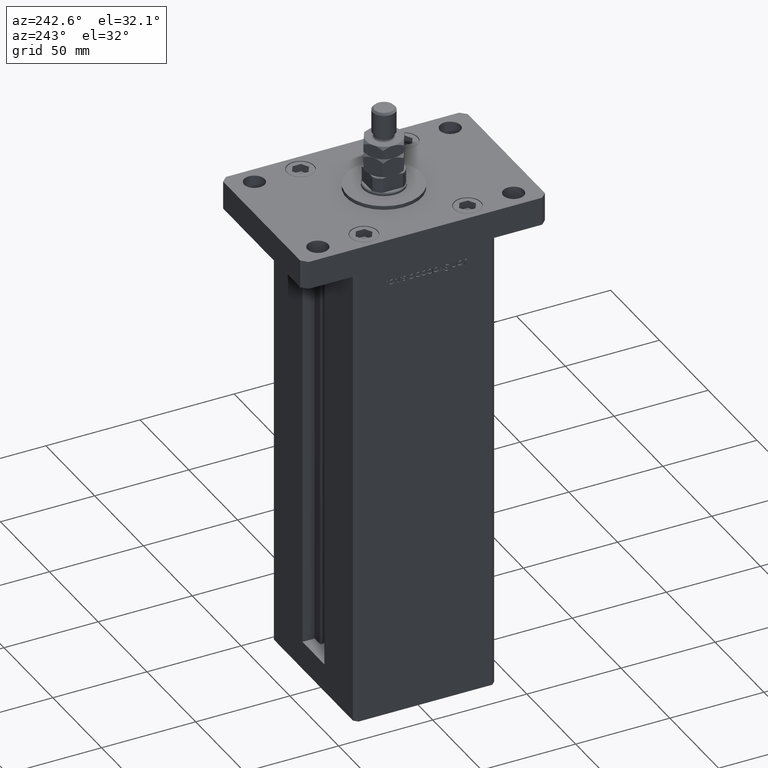
[diagram: clean part render]
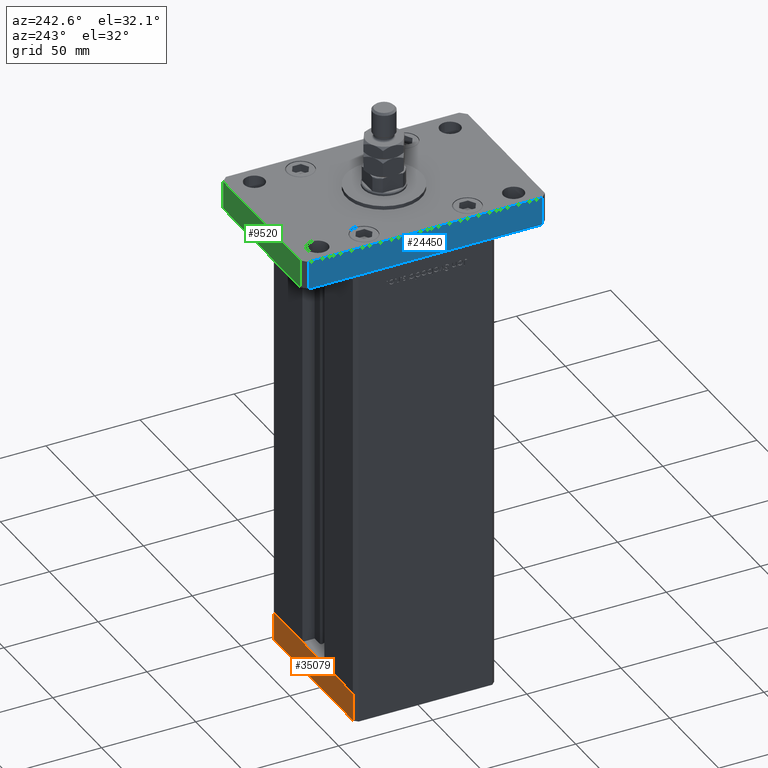
[diagram: same view with three faces highlighted in distinct colors, each labeled with its STEP entity id]
A machine part, auxiliary view with three faces highlighted in distinct colors.
Their STEP definitions:

[orange] entity #35079 — the highlighted planar face has unit normal (0, 1, 0).
#381 = CARTESIAN_POINT ( 'NONE',  ( 40.49999999999991473, 37.50000000000000711, 0.000000000000000000 ) ) ;
#815 = CARTESIAN_POINT ( 'NONE',  ( 40.49999999999991473, 37.50000000000000711, -15.00000000000000000 ) ) ;
#2016 = CARTESIAN_POINT ( 'NONE',  ( 40.49999999999991473, 37.50000000000000711, -15.00000000000000000 ) ) ;
#9674 = ORIENTED_EDGE ( 'NONE', *, *, #21441, .F. ) ;
#11696 = DIRECTION ( 'NONE',  ( 0.000000000000000000, 0.000000000000000000, 1.000000000000000000 ) ) ;
#12988 = EDGE_CURVE ( 'NONE', #54372, #23446, #21171, .T. ) ;
#13449 = VECTOR ( 'NONE', #38203, 1000.000000000000000 ) ;
#14392 = ORIENTED_EDGE ( 'NONE', *, *, #25641, .T. ) ;
#15710 = FACE_OUTER_BOUND ( 'NONE', #39530, .T. ) ;
#15831 = VECTOR ( 'NONE', #11696, 1000.000000000000000 ) ;
#21171 = LINE ( 'NONE', #55176, #15831 ) ;
#21215 = LINE ( 'NONE', #815, #13449 ) ;
#21441 = EDGE_CURVE ( 'NONE', #23446, #37216, #43516, .T. ) ;
#23446 = VERTEX_POINT ( 'NONE', #381 ) ;
#23709 = CARTESIAN_POINT ( 'NONE',  ( -40.50000000000000711, 37.49999999999997868, -15.00000000000000000 ) ) ;
#24340 = PLANE ( 'NONE',  #49362 ) ;
#25641 = EDGE_CURVE ( 'NONE', #54372, #32544, #21215, .T. ) ;
#27605 = LINE ( 'NONE', #23709, #32894 ) ;
#32544 = VERTEX_POINT ( 'NONE', #52908 ) ;
#32703 = DIRECTION ( 'NONE',  ( -3.426614273534436165E-16, 1.000000000000000000, 0.000000000000000000 ) ) ;
#32894 = VECTOR ( 'NONE', #40696, 1000.000000000000000 ) ;
#35079 = ADVANCED_FACE ( 'NONE', ( #15710 ), #24340, .T. ) ;
#37216 = VERTEX_POINT ( 'NONE', #48153 ) ;
#38203 = DIRECTION ( 'NONE',  ( -1.000000000000000000, -3.426614273534436165E-16, 0.000000000000000000 ) ) ;
#39530 = EDGE_LOOP ( 'NONE', ( #9674, #40669, #14392, #47368 ) ) ;
#39961 = EDGE_CURVE ( 'NONE', #32544, #37216, #27605, .T. ) ;
#40669 = ORIENTED_EDGE ( 'NONE', *, *, #12988, .F. ) ;
#40696 = DIRECTION ( 'NONE',  ( 0.000000000000000000, 0.000000000000000000, 1.000000000000000000 ) ) ;
#43516 = LINE ( 'NONE', #47428, #46236 ) ;
#45239 = DIRECTION ( 'NONE',  ( -1.000000000000000000, -3.426614273534436165E-16, 0.000000000000000000 ) ) ;
#46236 = VECTOR ( 'NONE', #51628, 1000.000000000000000 ) ;
#47368 = ORIENTED_EDGE ( 'NONE', *, *, #39961, .T. ) ;
#47428 = CARTESIAN_POINT ( 'NONE',  ( 40.49999999999991473, 37.50000000000000711, 0.000000000000000000 ) ) ;
#48153 = CARTESIAN_POINT ( 'NONE',  ( -40.50000000000000711, 37.49999999999997868, 0.000000000000000000 ) ) ;
#49362 = AXIS2_PLACEMENT_3D ( 'NONE', #2016, #32703, #45239 ) ;
#51628 = DIRECTION ( 'NONE',  ( -1.000000000000000000, -3.426614273534436165E-16, 0.000000000000000000 ) ) ;
#52908 = CARTESIAN_POINT ( 'NONE',  ( -40.50000000000000711, 37.49999999999997868, -15.00000000000000000 ) ) ;
#53295 = CARTESIAN_POINT ( 'NONE',  ( 40.49999999999991473, 37.50000000000000711, -15.00000000000000000 ) ) ;
#54372 = VERTEX_POINT ( 'NONE', #53295 ) ;
#55176 = CARTESIAN_POINT ( 'NONE',  ( 40.49999999999991473, 37.50000000000000711, -15.00000000000000000 ) ) ;

[blue] entity #24450 — the highlighted planar face has unit normal (1, 0, 0).
#744 = VECTOR ( 'NONE', #53127, 1000.000000000000000 ) ;
#1622 = CARTESIAN_POINT ( 'NONE',  ( -42.50000000000002132, 62.00000000000000711, 15.00000000000000000 ) ) ;
#2604 = ORIENTED_EDGE ( 'NONE', *, *, #5972, .T. ) ;
#4056 = VECTOR ( 'NONE', #52701, 1000.000000000000000 ) ;
#5972 = EDGE_CURVE ( 'NONE', #33193, #26816, #49967, .T. ) ;
#6654 = LINE ( 'NONE', #15335, #4056 ) ;
#8318 = EDGE_CURVE ( 'NONE', #16983, #49823, #6654, .T. ) ;
#12017 = DIRECTION ( 'NONE',  ( 2.238352872228137677E-16, -1.000000000000000000, 0.000000000000000000 ) ) ;
#13845 = ORIENTED_EDGE ( 'NONE', *, *, #8318, .F. ) ;
#15335 = CARTESIAN_POINT ( 'NONE',  ( -42.50000000000002132, 62.00000000000000711, 15.00000000000000000 ) ) ;
#15590 = EDGE_CURVE ( 'NONE', #49823, #26816, #19952, .T. ) ;
#16983 = VERTEX_POINT ( 'NONE', #1622 ) ;
#19665 = CARTESIAN_POINT ( 'NONE',  ( -42.49999999999999289, -62.00000000000001421, 15.00000000000000000 ) ) ;
#19952 = LINE ( 'NONE', #19665, #744 ) ;
#24450 = ADVANCED_FACE ( 'NONE', ( #55212 ), #36913, .F. ) ;
#26816 = VERTEX_POINT ( 'NONE', #42897 ) ;
#27677 = VECTOR ( 'NONE', #33034, 1000.000000000000000 ) ;
#30327 = AXIS2_PLACEMENT_3D ( 'NONE', #34026, #42944, #51045 ) ;
#30532 = EDGE_LOOP ( 'NONE', ( #2604, #53038, #13845, #40836 ) ) ;
#31655 = CARTESIAN_POINT ( 'NONE',  ( -42.49999999999999289, -62.00000000000001421, 15.00000000000000000 ) ) ;
#33034 = DIRECTION ( 'NONE',  ( -0.000000000000000000, -0.000000000000000000, -1.000000000000000000 ) ) ;
#33193 = VERTEX_POINT ( 'NONE', #52101 ) ;
#33309 = CARTESIAN_POINT ( 'NONE',  ( -42.50000000000002132, 62.00000000000000711, 15.00000000000000000 ) ) ;
#34026 = CARTESIAN_POINT ( 'NONE',  ( -42.50000000000002132, 62.00000000000000711, 15.00000000000000000 ) ) ;
#34868 = VECTOR ( 'NONE', #12017, 1000.000000000000000 ) ;
#36913 = PLANE ( 'NONE',  #30327 ) ;
#40836 = ORIENTED_EDGE ( 'NONE', *, *, #43577, .T. ) ;
#42897 = CARTESIAN_POINT ( 'NONE',  ( -42.49999999999999289, -62.00000000000001421, 0.000000000000000000 ) ) ;
#42944 = DIRECTION ( 'NONE',  ( 1.000000000000000000, 2.238352872228137677E-16, -0.000000000000000000 ) ) ;
#43577 = EDGE_CURVE ( 'NONE', #16983, #33193, #54231, .T. ) ;
#49823 = VERTEX_POINT ( 'NONE', #31655 ) ;
#49967 = LINE ( 'NONE', #54413, #34868 ) ;
#51045 = DIRECTION ( 'NONE',  ( -2.238352872228137677E-16, 1.000000000000000000, 0.000000000000000000 ) ) ;
#52101 = CARTESIAN_POINT ( 'NONE',  ( -42.50000000000002132, 62.00000000000000711, 0.000000000000000000 ) ) ;
#52701 = DIRECTION ( 'NONE',  ( 2.238352872228137677E-16, -1.000000000000000000, 0.000000000000000000 ) ) ;
#53038 = ORIENTED_EDGE ( 'NONE', *, *, #15590, .F. ) ;
#53127 = DIRECTION ( 'NONE',  ( -0.000000000000000000, -0.000000000000000000, -1.000000000000000000 ) ) ;
#54231 = LINE ( 'NONE', #33309, #27677 ) ;
#54413 = CARTESIAN_POINT ( 'NONE',  ( -42.50000000000002132, 62.00000000000000711, 0.000000000000000000 ) ) ;
#55212 = FACE_OUTER_BOUND ( 'NONE', #30532, .T. ) ;

[green] entity #9520 — the highlighted planar face has unit normal (0, -1, 0).
#1135 = VECTOR ( 'NONE', #44813, 1000.000000000000000 ) ;
#2145 = CARTESIAN_POINT ( 'NONE',  ( 39.50000000000002842, 65.00000000000002842, 15.00000000000000000 ) ) ;
#2864 = CARTESIAN_POINT ( 'NONE',  ( 39.50000000000002842, 65.00000000000002842, 15.00000000000000000 ) ) ;
#3043 = EDGE_LOOP ( 'NONE', ( #22012, #14157, #49626, #18798 ) ) ;
#6718 = CARTESIAN_POINT ( 'NONE',  ( 39.50000000000002842, 65.00000000000002842, 0.000000000000000000 ) ) ;
#6871 = LINE ( 'NONE', #7437, #1135 ) ;
#7437 = CARTESIAN_POINT ( 'NONE',  ( 39.50000000000002842, 65.00000000000002842, 0.000000000000000000 ) ) ;
#9520 = ADVANCED_FACE ( 'NONE', ( #49004 ), #31440, .F. ) ;
#13272 = CARTESIAN_POINT ( 'NONE',  ( -39.50000000000003553, 65.00000000000000000, 15.00000000000000000 ) ) ;
#13665 = VERTEX_POINT ( 'NONE', #6718 ) ;
#14157 = ORIENTED_EDGE ( 'NONE', *, *, #34489, .F. ) ;
#18087 = VECTOR ( 'NONE', #47164, 1000.000000000000000 ) ;
#18106 = CARTESIAN_POINT ( 'NONE',  ( -39.50000000000003553, 65.00000000000000000, 0.000000000000000000 ) ) ;
#18798 = ORIENTED_EDGE ( 'NONE', *, *, #41683, .T. ) ;
#19453 = DIRECTION ( 'NONE',  ( 1.000000000000000000, 3.513364001978341005E-16, 0.000000000000000000 ) ) ;
#22012 = ORIENTED_EDGE ( 'NONE', *, *, #30608, .T. ) ;
#24744 = DIRECTION ( 'NONE',  ( -0.000000000000000000, -0.000000000000000000, -1.000000000000000000 ) ) ;
#28333 = VERTEX_POINT ( 'NONE', #45126 ) ;
#30608 = EDGE_CURVE ( 'NONE', #13665, #45033, #6871, .T. ) ;
#30851 = AXIS2_PLACEMENT_3D ( 'NONE', #2145, #44531, #19453 ) ;
#31440 = PLANE ( 'NONE',  #30851 ) ;
#34489 = EDGE_CURVE ( 'NONE', #51208, #45033, #47008, .T. ) ;
#34630 = LINE ( 'NONE', #52196, #18087 ) ;
#35109 = VECTOR ( 'NONE', #24744, 1000.000000000000000 ) ;
#36059 = LINE ( 'NONE', #2864, #54360 ) ;
#41683 = EDGE_CURVE ( 'NONE', #28333, #13665, #36059, .T. ) ;
#44531 = DIRECTION ( 'NONE',  ( 3.513364001978341005E-16, -1.000000000000000000, 0.000000000000000000 ) ) ;
#44813 = DIRECTION ( 'NONE',  ( -1.000000000000000000, -3.513364001978340512E-16, 0.000000000000000000 ) ) ;
#45033 = VERTEX_POINT ( 'NONE', #18106 ) ;
#45126 = CARTESIAN_POINT ( 'NONE',  ( 39.50000000000002842, 65.00000000000002842, 15.00000000000000000 ) ) ;
#47008 = LINE ( 'NONE', #13272, #35109 ) ;
#47164 = DIRECTION ( 'NONE',  ( -1.000000000000000000, -3.513364001978340512E-16, 0.000000000000000000 ) ) ;
#49004 = FACE_OUTER_BOUND ( 'NONE', #3043, .T. ) ;
#49168 = DIRECTION ( 'NONE',  ( -0.000000000000000000, -0.000000000000000000, -1.000000000000000000 ) ) ;
#49626 = ORIENTED_EDGE ( 'NONE', *, *, #54268, .F. ) ;
#51208 = VERTEX_POINT ( 'NONE', #53367 ) ;
#52196 = CARTESIAN_POINT ( 'NONE',  ( 39.50000000000002842, 65.00000000000002842, 15.00000000000000000 ) ) ;
#53367 = CARTESIAN_POINT ( 'NONE',  ( -39.50000000000003553, 65.00000000000000000, 15.00000000000000000 ) ) ;
#54268 = EDGE_CURVE ( 'NONE', #28333, #51208, #34630, .T. ) ;
#54360 = VECTOR ( 'NONE', #49168, 1000.000000000000000 ) ;